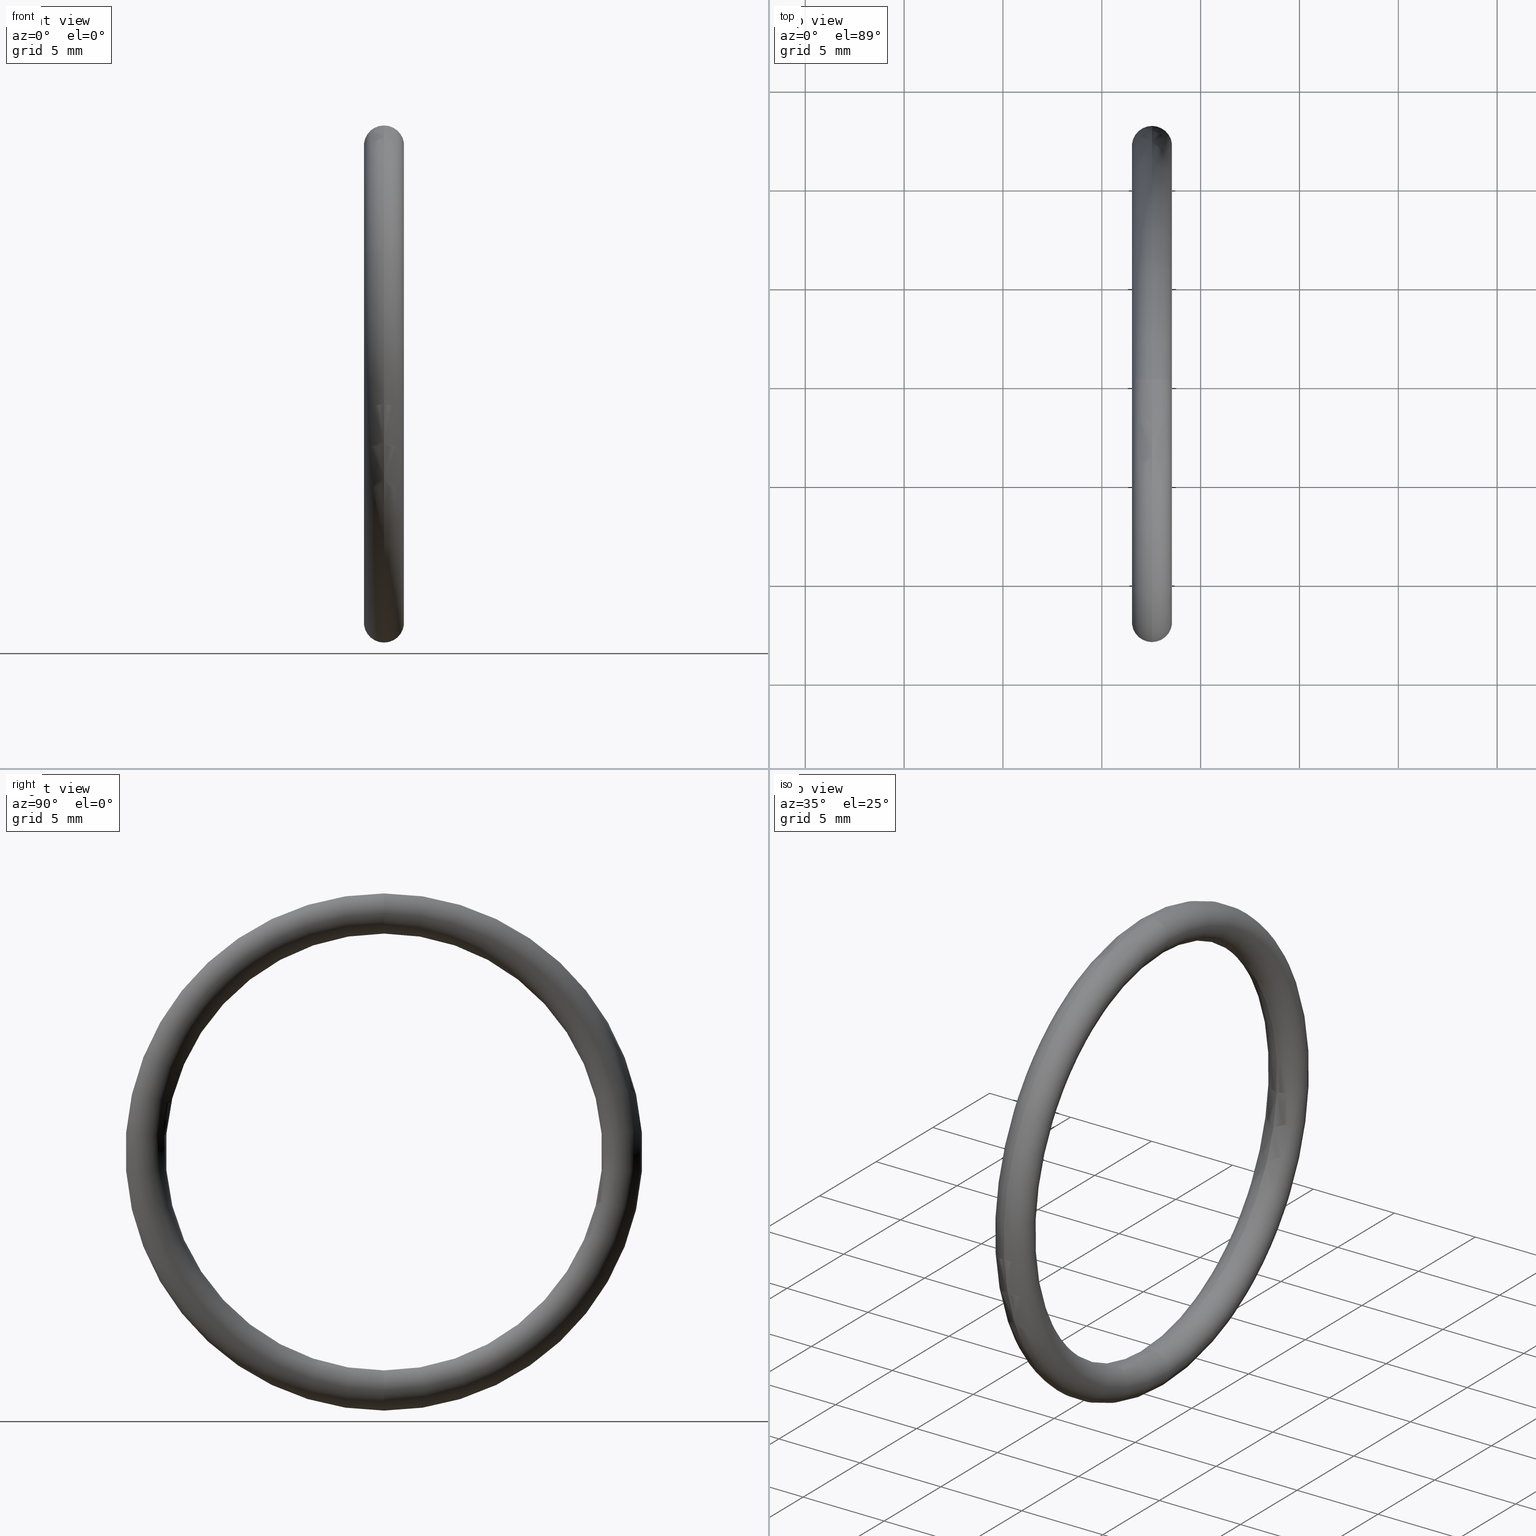
[diagram: canonical four-view strip — front | top / right | iso, engineering-drawing reading convention]
A machine part, canonical four-view strip (front | top / right | iso — engineering-drawing reading convention). The complete STEP part file that produces these views, byte-faithful:
ISO-10303-21;
HEADER;
FILE_DESCRIPTION (( 'STEP AP203' ),
    '1' );
FILE_NAME ('OM-25-VT.STEP',
    '2008-08-18T11:55:13',
    ( 'BSI05' ),
    ( 'BAYSTATE' ),
    'SwSTEP 2.0',
    'SolidWorks 2007',
    '' );
FILE_SCHEMA (( 'CONFIG_CONTROL_DESIGN' ));
ENDSEC;

DATA;
#1 = CIRCLE ( 'NONE', #9, 0.4350000000000000000 ) ;
#2 = CARTESIAN_POINT ( 'NONE',  ( 0.1000000000000000700, 0.0000000000000000000, 0.0000000000000000000 ) ) ;
#3 = CARTESIAN_POINT ( 'NONE',  ( 0.1000000000000000700, 0.0000000000000000000, 0.0000000000000000000 ) ) ;
#4 = TOROIDAL_SURFACE ( 'NONE', #19, 0.4749999999999999800, 0.04000000000000000100 ) ;
#5 = DIRECTION ( 'NONE',  ( 0.0000000000000000000, 0.0000000000000000000, 1.000000000000000000 ) ) ;
#6 = DIRECTION ( 'NONE',  ( -1.000000000000000000, 0.0000000000000000000, 0.0000000000000000000 ) ) ;
#7 = CARTESIAN_POINT ( 'NONE',  ( 0.1000000000000000700, 0.0000000000000000000, 0.0000000000000000000 ) ) ;
#8 = CARTESIAN_POINT ( 'NONE',  ( 0.1000000000000000700, 0.0000000000000000000, 0.0000000000000000000 ) ) ;
#9 = AXIS2_PLACEMENT_3D ( 'NONE', #8, #15, #14 ) ;
#10 = FACE_OUTER_BOUND ( 'NONE', #79, .T. ) ;
#11 = TOROIDAL_SURFACE ( 'NONE', #40, 0.4749999999999999800, 0.04000000000000000100 ) ;
#12 = DIRECTION ( 'NONE',  ( 0.0000000000000000000, 0.0000000000000000000, 1.000000000000000000 ) ) ;
#13 = DIRECTION ( 'NONE',  ( -1.000000000000000000, 0.0000000000000000000, 0.0000000000000000000 ) ) ;
#14 = DIRECTION ( 'NONE',  ( 0.0000000000000000000, 0.0000000000000000000, 1.000000000000000000 ) ) ;
#15 = DIRECTION ( 'NONE',  ( -1.000000000000000000, 0.0000000000000000000, 0.0000000000000000000 ) ) ;
#16 = CIRCLE ( 'NONE', #38, 0.03999999999999998000 ) ;
#17 = DIRECTION ( 'NONE',  ( 0.0000000000000000000, 0.0000000000000000000, 1.000000000000000000 ) ) ;
#18 = DIRECTION ( 'NONE',  ( -1.000000000000000000, 0.0000000000000000000, 0.0000000000000000000 ) ) ;
#19 = AXIS2_PLACEMENT_3D ( 'NONE', #3, #18, #17 ) ;
#20 = TOROIDAL_SURFACE ( 'NONE', #22, 0.4749999999999999800, 0.04000000000000000100 ) ;
#21 = FACE_OUTER_BOUND ( 'NONE', #76, .T. ) ;
#22 = AXIS2_PLACEMENT_3D ( 'NONE', #7, #6, #5 ) ;
#23 = UNCERTAINTY_MEASURE_WITH_UNIT (LENGTH_MEASURE( 1.000000000000000100E-005 ), #26, 'distance_accuracy_value', 'NONE');
#24 =( NAMED_UNIT ( * ) SI_UNIT ( $, .STERADIAN. ) SOLID_ANGLE_UNIT ( ) );
#25 =( NAMED_UNIT ( * ) PLANE_ANGLE_UNIT ( ) SI_UNIT ( $, .RADIAN. ) );
#26 =( CONVERSION_BASED_UNIT ( 'INCH', #27 ) LENGTH_UNIT ( ) NAMED_UNIT ( #28 ) );
#27 = LENGTH_MEASURE_WITH_UNIT ( LENGTH_MEASURE( 0.02539999999999999900 ), #30 );
#28 = DIMENSIONAL_EXPONENTS ( 1.000000000000000000, 0.0000000000000000000, 0.0000000000000000000, 0.0000000000000000000, 0.0000000000000000000, 0.0000000000000000000, 0.0000000000000000000 ) ;
#29 = DIRECTION ( 'NONE',  ( -1.000000000000000000, 0.0000000000000000000, 0.0000000000000000000 ) ) ;
#30 =( LENGTH_UNIT ( ) NAMED_UNIT ( * ) SI_UNIT ( $, .METRE. ) );
#31 = DIRECTION ( 'NONE',  ( 0.0000000000000000000, -1.224646799147353000E-016, 1.000000000000000000 ) ) ;
#32 = DIRECTION ( 'NONE',  ( 0.0000000000000000000, 1.000000000000000000, 1.224646799147353200E-016 ) ) ;
#33 = AXIS2_PLACEMENT_3D ( 'NONE', #39, #32, #31 ) ;
#34 = CIRCLE ( 'NONE', #33, 0.03999999999999998000 ) ;
#35 = DIRECTION ( 'NONE',  ( 0.0000000000000000000, 0.0000000000000000000, -1.000000000000000000 ) ) ;
#36 = DIRECTION ( 'NONE',  ( 0.0000000000000000000, -1.000000000000000000, 0.0000000000000000000 ) ) ;
#37 = CARTESIAN_POINT ( 'NONE',  ( 0.1000000000000000700, 0.0000000000000000000, 0.4749999999999999800 ) ) ;
#38 = AXIS2_PLACEMENT_3D ( 'NONE', #37, #36, #35 ) ;
#39 = CARTESIAN_POINT ( 'NONE',  ( 0.1000000000000000700, 5.817072295949927200E-017, -0.4749999999999999800 ) ) ;
#40 = AXIS2_PLACEMENT_3D ( 'NONE', #2, #29, #41 ) ;
#41 = DIRECTION ( 'NONE',  ( 0.0000000000000000000, 0.0000000000000000000, 1.000000000000000000 ) ) ;
#42 = CARTESIAN_POINT ( 'NONE',  ( 0.1000000000000000700, 0.0000000000000000000, 0.0000000000000000000 ) ) ;
#43 = AXIS2_PLACEMENT_3D ( 'NONE', #42, #13, #12 ) ;
#44 = CIRCLE ( 'NONE', #43, 0.5150000000000000100 ) ;
#45 = EDGE_LOOP ( 'NONE', ( #47, #48, #49, #50 ) ) ;
#46 = ADVANCED_FACE ( 'NONE', ( #56 ), #53, .T. ) ;
#47 = ORIENTED_EDGE ( 'NONE', *, *, #61, .F. ) ;
#48 = ORIENTED_EDGE ( 'NONE', *, *, #87, .F. ) ;
#49 = ORIENTED_EDGE ( 'NONE', *, *, #67, .T. ) ;
#50 = ORIENTED_EDGE ( 'NONE', *, *, #84, .T. ) ;
#51 = CLOSED_SHELL ( 'NONE', ( #78, #68, #81, #46 ) ) ;
#52 = ADVANCED_BREP_SHAPE_REPRESENTATION ( 'OM-25-VT', ( #77, #166 ), #88 ) ;
#53 = TOROIDAL_SURFACE ( 'NONE', #115, 0.4749999999999999800, 0.04000000000000000100 ) ;
#54 = CARTESIAN_POINT ( 'NONE',  ( 0.1000000000000000700, 5.817072295949927200E-017, -0.4749999999999999800 ) ) ;
#55 = CARTESIAN_POINT ( 'NONE',  ( 0.1000000000000000700, 0.0000000000000000000, 0.0000000000000000000 ) ) ;
#56 = FACE_OUTER_BOUND ( 'NONE', #45, .T. ) ;
#57 = EDGE_CURVE ( 'NONE', #58, #59, #112, .T. ) ;
#58 = VERTEX_POINT ( 'NONE', #108 ) ;
#59 = VERTEX_POINT ( 'NONE', #107 ) ;
#60 = ORIENTED_EDGE ( 'NONE', *, *, #61, .T. ) ;
#61 = EDGE_CURVE ( 'NONE', #58, #62, #106, .T. ) ;
#62 = VERTEX_POINT ( 'NONE', #101 ) ;
#63 = VERTEX_POINT ( 'NONE', #100 ) ;
#64 = ORIENTED_EDGE ( 'NONE', *, *, #65, .T. ) ;
#65 = EDGE_CURVE ( 'NONE', #62, #63, #99, .T. ) ;
#66 = ORIENTED_EDGE ( 'NONE', *, *, #67, .F. ) ;
#67 = EDGE_CURVE ( 'NONE', #59, #63, #94, .T. ) ;
#68 = ADVANCED_FACE ( 'NONE', ( #89 ), #11, .T. ) ;
#69 = EDGE_LOOP ( 'NONE', ( #70, #71, #73, #74 ) ) ;
#70 = ORIENTED_EDGE ( 'NONE', *, *, #65, .F. ) ;
#71 = ORIENTED_EDGE ( 'NONE', *, *, #72, .T. ) ;
#72 = EDGE_CURVE ( 'NONE', #62, #58, #44, .T. ) ;
#73 = ORIENTED_EDGE ( 'NONE', *, *, #57, .T. ) ;
#74 = ORIENTED_EDGE ( 'NONE', *, *, #75, .F. ) ;
#75 = EDGE_CURVE ( 'NONE', #63, #59, #1, .T. ) ;
#76 = EDGE_LOOP ( 'NONE', ( #82, #83, #85, #86 ) ) ;
#77 = MANIFOLD_SOLID_BREP ( 'NONE', #51 ) ;
#78 = ADVANCED_FACE ( 'NONE', ( #10 ), #20, .T. ) ;
#79 = EDGE_LOOP ( 'NONE', ( #80, #60, #64, #66 ) ) ;
#80 = ORIENTED_EDGE ( 'NONE', *, *, #57, .F. ) ;
#81 = ADVANCED_FACE ( 'NONE', ( #21 ), #4, .T. ) ;
#82 = ORIENTED_EDGE ( 'NONE', *, *, #72, .F. ) ;
#83 = ORIENTED_EDGE ( 'NONE', *, *, #84, .F. ) ;
#84 = EDGE_CURVE ( 'NONE', #63, #62, #16, .T. ) ;
#85 = ORIENTED_EDGE ( 'NONE', *, *, #75, .T. ) ;
#86 = ORIENTED_EDGE ( 'NONE', *, *, #87, .T. ) ;
#87 = EDGE_CURVE ( 'NONE', #59, #58, #34, .T. ) ;
#88 =( GEOMETRIC_REPRESENTATION_CONTEXT ( 3 ) GLOBAL_UNCERTAINTY_ASSIGNED_CONTEXT ( ( #23 ) ) GLOBAL_UNIT_ASSIGNED_CONTEXT ( ( #26, #25, #24 ) ) REPRESENTATION_CONTEXT ( 'NONE', 'WORKASPACE' ) );
#89 = FACE_OUTER_BOUND ( 'NONE', #69, .T. ) ;
#90 = DIRECTION ( 'NONE',  ( 0.0000000000000000000, 0.0000000000000000000, 1.000000000000000000 ) ) ;
#91 = DIRECTION ( 'NONE',  ( -1.000000000000000000, 0.0000000000000000000, 0.0000000000000000000 ) ) ;
#92 = CARTESIAN_POINT ( 'NONE',  ( 0.1000000000000000700, 0.0000000000000000000, 0.0000000000000000000 ) ) ;
#93 = AXIS2_PLACEMENT_3D ( 'NONE', #92, #91, #90 ) ;
#94 = CIRCLE ( 'NONE', #93, 0.4350000000000000000 ) ;
#95 = DIRECTION ( 'NONE',  ( 0.0000000000000000000, 0.0000000000000000000, -1.000000000000000000 ) ) ;
#96 = DIRECTION ( 'NONE',  ( 0.0000000000000000000, -1.000000000000000000, 0.0000000000000000000 ) ) ;
#97 = CARTESIAN_POINT ( 'NONE',  ( 0.1000000000000000700, 0.0000000000000000000, 0.4749999999999999800 ) ) ;
#98 = AXIS2_PLACEMENT_3D ( 'NONE', #97, #96, #95 ) ;
#99 = CIRCLE ( 'NONE', #98, 0.03999999999999998000 ) ;
#100 = CARTESIAN_POINT ( 'NONE',  ( 0.1000000000000000700, 0.0000000000000000000, 0.4350000000000000000 ) ) ;
#101 = CARTESIAN_POINT ( 'NONE',  ( 0.1000000000000000700, 0.0000000000000000000, 0.5150000000000000100 ) ) ;
#102 = DIRECTION ( 'NONE',  ( 0.0000000000000000000, 0.0000000000000000000, 1.000000000000000000 ) ) ;
#103 = DIRECTION ( 'NONE',  ( -1.000000000000000000, 0.0000000000000000000, 0.0000000000000000000 ) ) ;
#104 = CARTESIAN_POINT ( 'NONE',  ( 0.1000000000000000700, 0.0000000000000000000, 0.0000000000000000000 ) ) ;
#105 = AXIS2_PLACEMENT_3D ( 'NONE', #104, #103, #102 ) ;
#106 = CIRCLE ( 'NONE', #105, 0.5150000000000000100 ) ;
#107 = CARTESIAN_POINT ( 'NONE',  ( 0.1000000000000000700, 5.327213576290986400E-017, -0.4350000000000000000 ) ) ;
#108 = CARTESIAN_POINT ( 'NONE',  ( 0.1000000000000000700, 6.306931015608868600E-017, -0.5150000000000000100 ) ) ;
#109 = DIRECTION ( 'NONE',  ( 0.0000000000000000000, -1.224646799147353000E-016, 1.000000000000000000 ) ) ;
#110 = DIRECTION ( 'NONE',  ( 0.0000000000000000000, 1.000000000000000000, 1.224646799147353200E-016 ) ) ;
#111 = AXIS2_PLACEMENT_3D ( 'NONE', #54, #110, #109 ) ;
#112 = CIRCLE ( 'NONE', #111, 0.03999999999999998000 ) ;
#113 = DIRECTION ( 'NONE',  ( 0.0000000000000000000, 0.0000000000000000000, 1.000000000000000000 ) ) ;
#114 = DIRECTION ( 'NONE',  ( -1.000000000000000000, 0.0000000000000000000, 0.0000000000000000000 ) ) ;
#115 = AXIS2_PLACEMENT_3D ( 'NONE', #55, #114, #113 ) ;
#116 = PRODUCT_DEFINITION_SHAPE ( 'NONE', 'NONE',  #129 ) ;
#117 = PRODUCT_RELATED_PRODUCT_CATEGORY ( 'detail', '', ( #141 ) ) ;
#118 = CC_DESIGN_SECURITY_CLASSIFICATION ( #157, ( #144 ) ) ;
#119 = DATE_AND_TIME ( #120, #121 ) ;
#120 = CALENDAR_DATE ( 2008, 18, 8 ) ;
#121 = LOCAL_TIME ( 17, 25, 13.00000000000000000, #122 ) ;
#122 = COORDINATED_UNIVERSAL_TIME_OFFSET ( 5, 30, .AHEAD. ) ;
#123 = APPROVAL_PERSON_ORGANIZATION ( #127, #125, #124 ) ;
#124 = APPROVAL_ROLE ( '' ) ;
#125 = APPROVAL ( #126, 'UNSPECIFIED' ) ;
#126 = APPROVAL_STATUS ( 'not_yet_approved' ) ;
#127 = PERSON_AND_ORGANIZATION ( #172, #196 ) ;
#128 = CARTESIAN_POINT ( 'NONE',  ( 0.0000000000000000000, 0.0000000000000000000, 0.0000000000000000000 ) ) ;
#129 = PRODUCT_DEFINITION ( 'UNKNOWN', '', #144, #195 ) ;
#130 = APPLICATION_PROTOCOL_DEFINITION ( 'international standard', 'config_control_design', 1994, #131 ) ;
#131 = APPLICATION_CONTEXT ( 'configuration controlled 3d designs of mechanical parts and assemblies' ) ;
#132 = CC_DESIGN_APPROVAL ( #192, ( #129 ) ) ;
#133 = APPROVAL_DATE_TIME ( #134, #192 ) ;
#134 = DATE_AND_TIME ( #135, #136 ) ;
#135 = CALENDAR_DATE ( 2008, 18, 8 ) ;
#136 = LOCAL_TIME ( 17, 25, 13.00000000000000000, #137 ) ;
#137 = COORDINATED_UNIVERSAL_TIME_OFFSET ( 5, 30, .AHEAD. ) ;
#138 = CC_DESIGN_PERSON_AND_ORGANIZATION_ASSIGNMENT ( #140, #139, ( #141 ) ) ;
#139 = PERSON_AND_ORGANIZATION_ROLE ( 'design_owner' ) ;
#140 = PERSON_AND_ORGANIZATION ( #172, #196 ) ;
#141 = PRODUCT ( 'OM-25-VT', 'OM-25-VT', '', ( #142 ) ) ;
#142 = MECHANICAL_CONTEXT ( 'NONE', #173, 'mechanical' ) ;
#143 = APPLICATION_PROTOCOL_DEFINITION ( 'international standard', 'config_control_design', 1994, #173 ) ;
#144 = PRODUCT_DEFINITION_FORMATION_WITH_SPECIFIED_SOURCE ( 'ANY', '', #141, .NOT_KNOWN. ) ;
#145 = CC_DESIGN_DATE_AND_TIME_ASSIGNMENT ( #147, #146, ( #129 ) ) ;
#146 = DATE_TIME_ROLE ( 'creation_date' ) ;
#147 = DATE_AND_TIME ( #148, #149 ) ;
#148 = CALENDAR_DATE ( 2008, 18, 8 ) ;
#149 = LOCAL_TIME ( 17, 25, 13.00000000000000000, #150 ) ;
#150 = COORDINATED_UNIVERSAL_TIME_OFFSET ( 5, 30, .AHEAD. ) ;
#151 = DIRECTION ( 'NONE',  ( 1.000000000000000000, 0.0000000000000000000, 0.0000000000000000000 ) ) ;
#152 = LOCAL_TIME ( 17, 25, 13.00000000000000000, #153 ) ;
#153 = COORDINATED_UNIVERSAL_TIME_OFFSET ( 5, 30, .AHEAD. ) ;
#154 = CC_DESIGN_PERSON_AND_ORGANIZATION_ASSIGNMENT ( #156, #155, ( #157 ) ) ;
#155 = PERSON_AND_ORGANIZATION_ROLE ( 'classification_officer' ) ;
#156 = PERSON_AND_ORGANIZATION ( #172, #196 ) ;
#157 = SECURITY_CLASSIFICATION ( '', '', #175 ) ;
#158 = SHAPE_DEFINITION_REPRESENTATION ( #116, #52 ) ;
#159 = CC_DESIGN_APPROVAL ( #180, ( #157 ) ) ;
#160 = APPROVAL_DATE_TIME ( #161, #180 ) ;
#161 = DATE_AND_TIME ( #162, #163 ) ;
#162 = CALENDAR_DATE ( 2008, 18, 8 ) ;
#163 = LOCAL_TIME ( 17, 25, 13.00000000000000000, #164 ) ;
#164 = COORDINATED_UNIVERSAL_TIME_OFFSET ( 5, 30, .AHEAD. ) ;
#165 = APPROVAL_PERSON_ORGANIZATION ( #182, #180, #179 ) ;
#166 = AXIS2_PLACEMENT_3D ( 'NONE', #128, #174, #151 ) ;
#167 = CC_DESIGN_PERSON_AND_ORGANIZATION_ASSIGNMENT ( #169, #168, ( #144 ) ) ;
#168 = PERSON_AND_ORGANIZATION_ROLE ( 'creator' ) ;
#169 = PERSON_AND_ORGANIZATION ( #172, #196 ) ;
#170 = CC_DESIGN_APPROVAL ( #125, ( #144 ) ) ;
#171 = APPROVAL_DATE_TIME ( #119, #125 ) ;
#172 = PERSON ( 'UNSPECIFIED', 'UNSPECIFIED', 'UNSPECIFIED', ('UNSPECIFIED'), ('UNSPECIFIED'), ('UNSPECIFIED') ) ;
#173 = APPLICATION_CONTEXT ( 'configuration controlled 3d designs of mechanical parts and assemblies' ) ;
#174 = DIRECTION ( 'NONE',  ( 0.0000000000000000000, 0.0000000000000000000, 1.000000000000000000 ) ) ;
#175 = SECURITY_CLASSIFICATION_LEVEL ( 'unclassified' ) ;
#176 = CC_DESIGN_PERSON_AND_ORGANIZATION_ASSIGNMENT ( #178, #177, ( #144 ) ) ;
#177 = PERSON_AND_ORGANIZATION_ROLE ( 'design_supplier' ) ;
#178 = PERSON_AND_ORGANIZATION ( #172, #196 ) ;
#179 = APPROVAL_ROLE ( '' ) ;
#180 = APPROVAL ( #181, 'UNSPECIFIED' ) ;
#181 = APPROVAL_STATUS ( 'not_yet_approved' ) ;
#182 = PERSON_AND_ORGANIZATION ( #172, #196 ) ;
#183 = CC_DESIGN_DATE_AND_TIME_ASSIGNMENT ( #185, #184, ( #157 ) ) ;
#184 = DATE_TIME_ROLE ( 'classification_date' ) ;
#185 = DATE_AND_TIME ( #186, #152 ) ;
#186 = CALENDAR_DATE ( 2008, 18, 8 ) ;
#187 = CC_DESIGN_PERSON_AND_ORGANIZATION_ASSIGNMENT ( #189, #188, ( #129 ) ) ;
#188 = PERSON_AND_ORGANIZATION_ROLE ( 'creator' ) ;
#189 = PERSON_AND_ORGANIZATION ( #172, #196 ) ;
#190 = APPROVAL_PERSON_ORGANIZATION ( #194, #192, #191 ) ;
#191 = APPROVAL_ROLE ( '' ) ;
#192 = APPROVAL ( #193, 'UNSPECIFIED' ) ;
#193 = APPROVAL_STATUS ( 'not_yet_approved' ) ;
#194 = PERSON_AND_ORGANIZATION ( #172, #196 ) ;
#195 = DESIGN_CONTEXT ( 'detailed design', #131, 'design' ) ;
#196 = ORGANIZATION ( 'UNSPECIFIED', 'UNSPECIFIED', '' ) ;
ENDSEC;
END-ISO-10303-21;
